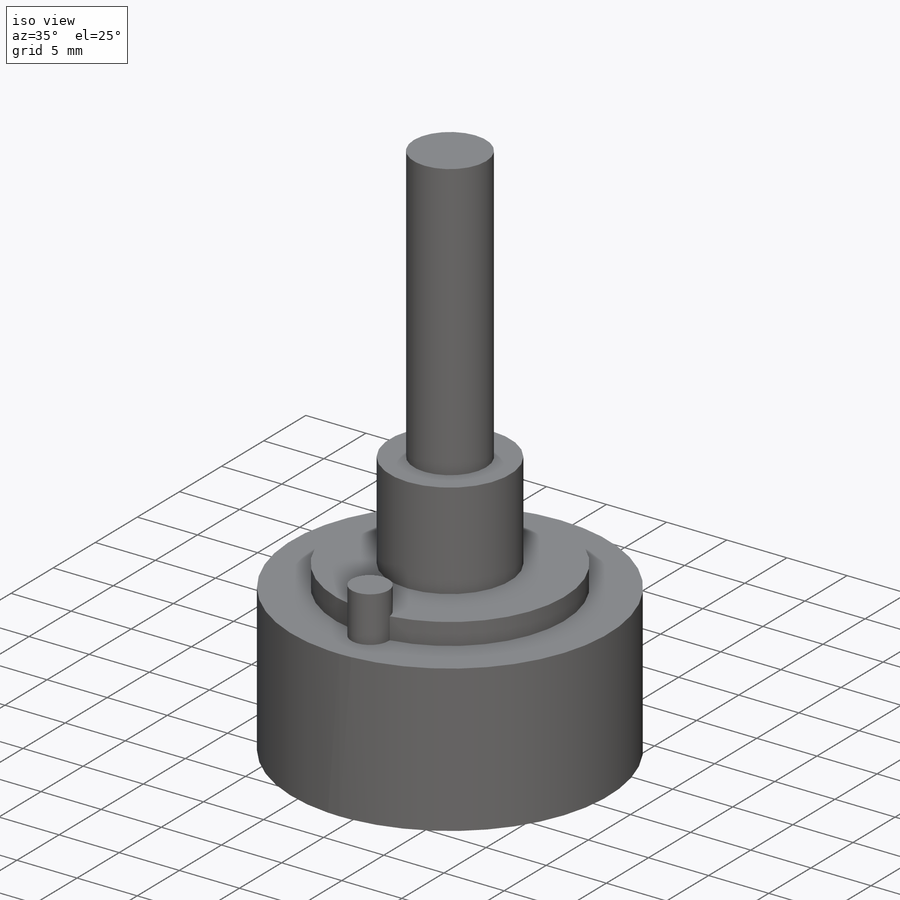
[diagram: iso view]
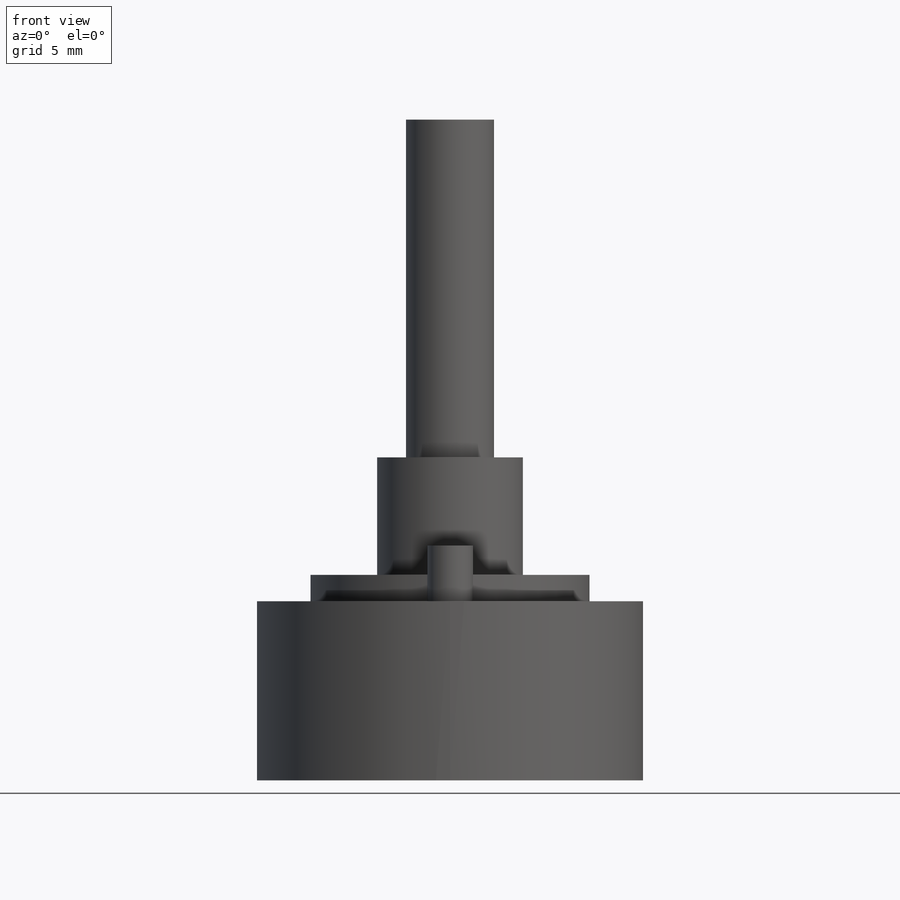
[diagram: front view]
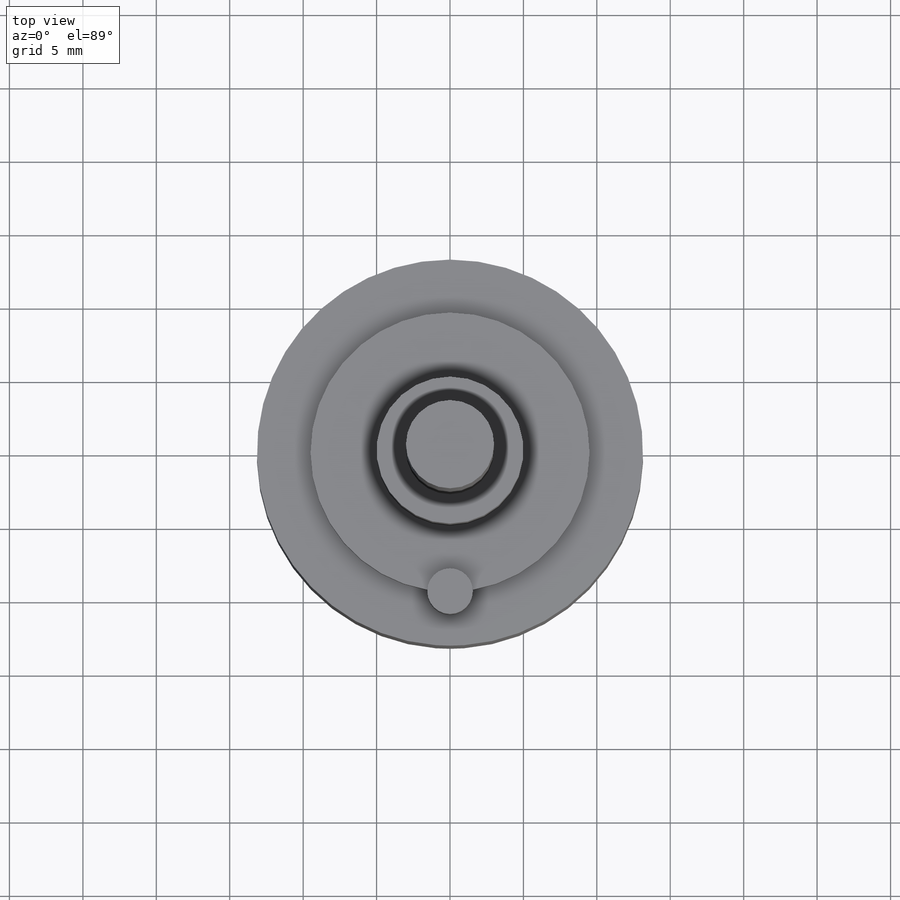
[diagram: top view]
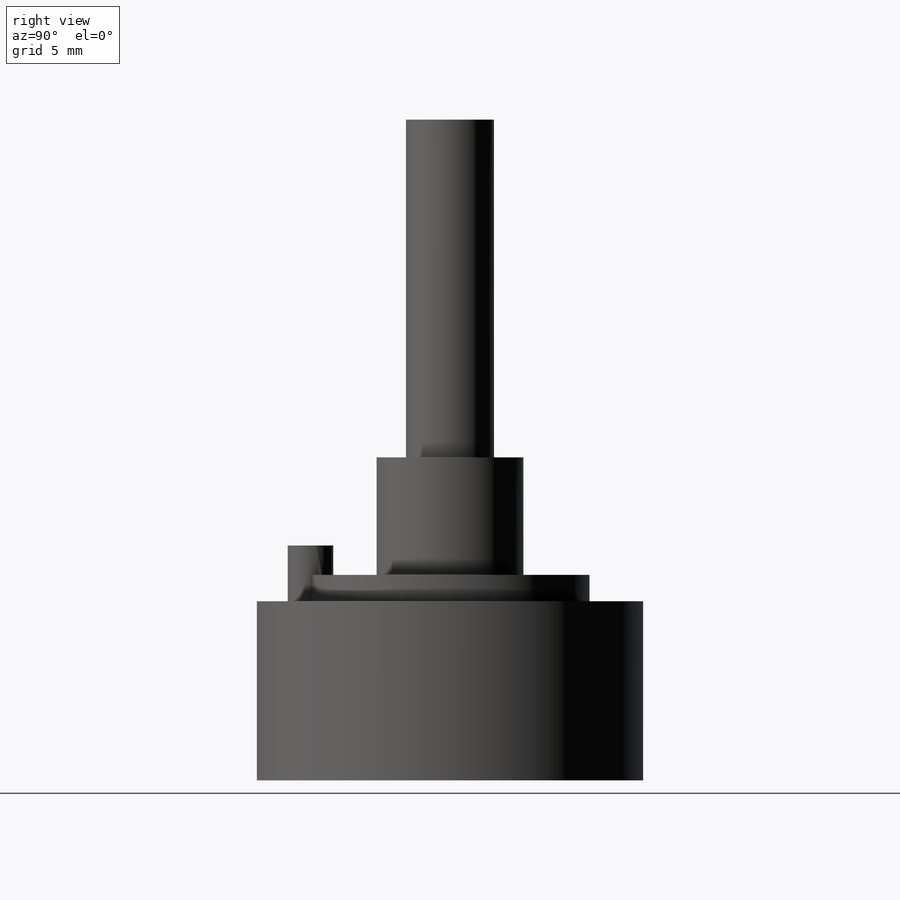
[diagram: right view]
SOLIDWORKS PART (.sldprt)
format: sldprt  version: not decoded by parser v0  size: 151,040 bytes
history: native  units: mm
features: sketch x5, extrude x5, material x1 (+13 scaffold rows collapsed)
feature tree (24):
  scaffold x13  (default folders/planes/origin — collapsed)
  material  "Material <not specified>"
  sketch  "Sketch1"  dims[D1=~12.539328mm]
  extrude  "Boss-Extrude1"  Depth=12.2mm
  sketch  "Sketch2"  dims[D1=~6.464796mm]
  extrude  "Boss-Extrude2"  Depth=1.8mm
  sketch  "Sketch3"  dims[D1=4.0mm]
  extrude  "Boss-Extrude3"  Depth=8mm
  sketch  "Sketch4"  dims[D1=~2.524079mm]
  extrude  "Boss-Extrude4"  Depth=23mm
  sketch  "Sketch5"  dims[D1=9.5mm]
  extrude  "Boss-Extrude5"  Depth=3.8mm
decode coverage: 10 of 10 modeling features carry decoded parameters
note: ~ marks probable driven/reference dimensions
note: suppression state not decoded; provenance and decode notes live in map.json
